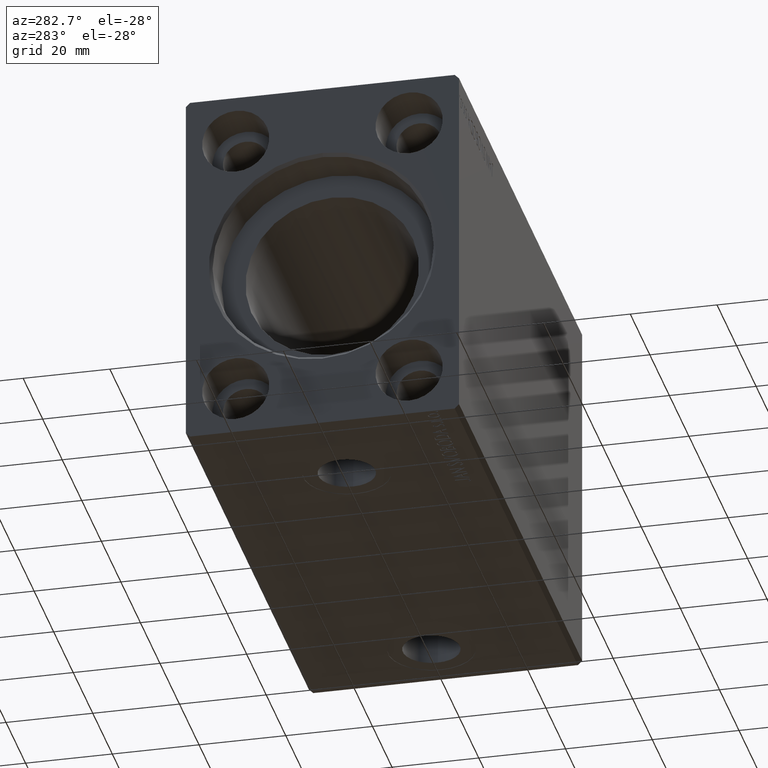
[diagram: clean part render]
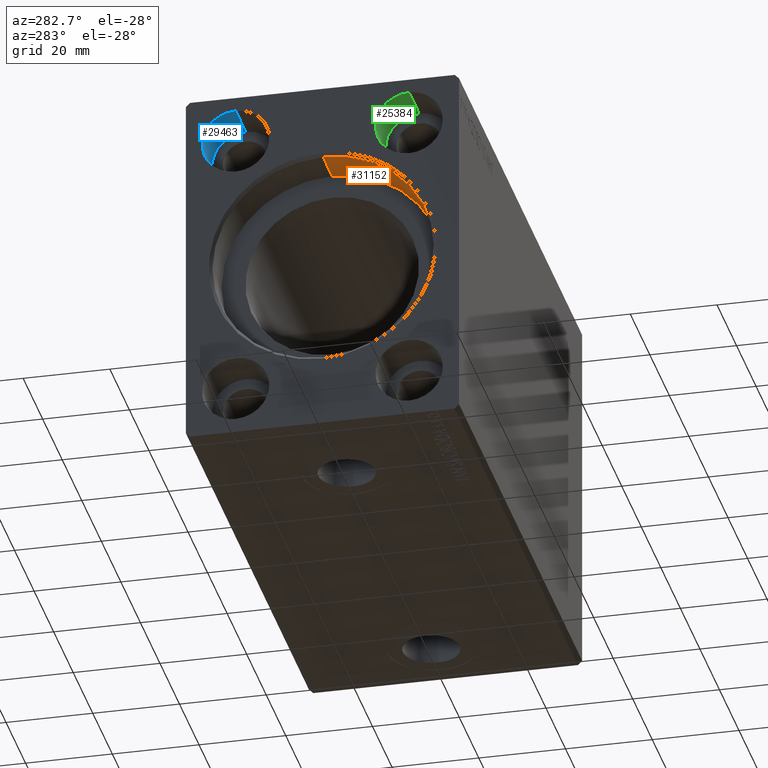
[diagram: same view with three faces highlighted in distinct colors, each labeled with its STEP entity id]
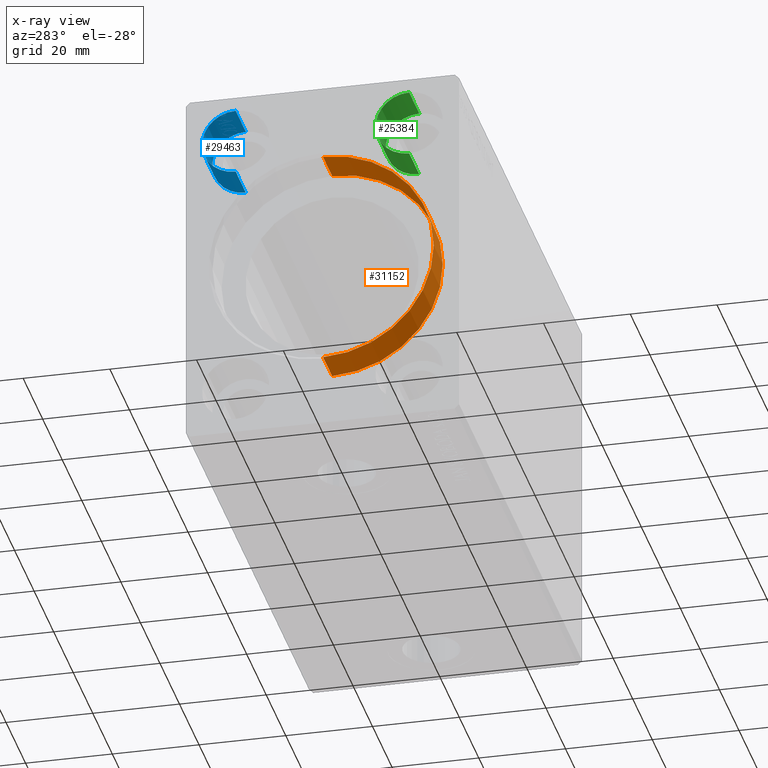
[diagram: x-ray of the same camera — body ghosted, the three highlighted faces saturated]
A machine part, auxiliary view with three faces highlighted in distinct colors.
The next image is the same camera in x-ray (body ghosted, the three faces saturated) — at least one of them is partly hidden behind the body in this view.
Their STEP definitions:

[orange] entity #31152 — the highlighted cylindrical surface (partial cylindrical patch) has radius 25.5 mm, axis along (-1, -0, -0).
#397 = EDGE_LOOP ( 'NONE', ( #21439, #27647, #38355, #24748 ) ) ;
#661 = VERTEX_POINT ( 'NONE', #23253 ) ;
#1562 = CARTESIAN_POINT ( 'NONE',  ( 10.00000000000000000, 0.000000000000000000, 0.000000000000000000 ) ) ;
#1859 = DIRECTION ( 'NONE',  ( -1.000000000000000000, -0.000000000000000000, -0.000000000000000000 ) ) ;
#2559 = CYLINDRICAL_SURFACE ( 'NONE', #8181, 25.50000000000000000 ) ;
#4489 = CIRCLE ( 'NONE', #20944, 25.50000000000000000 ) ;
#4895 = LINE ( 'NONE', #41168, #18906 ) ;
#5386 = VERTEX_POINT ( 'NONE', #39293 ) ;
#7262 = DIRECTION ( 'NONE',  ( 0.000000000000000000, 0.000000000000000000, -1.000000000000000000 ) ) ;
#8181 = AXIS2_PLACEMENT_3D ( 'NONE', #18642, #18010, #15635 ) ;
#8804 = EDGE_CURVE ( 'NONE', #37252, #19136, #34508, .T. ) ;
#13685 = CARTESIAN_POINT ( 'NONE',  ( 0.6999999999999922951, 0.000000000000000000, 0.000000000000000000 ) ) ;
#14353 = VECTOR ( 'NONE', #1859, 1000.000000000000000 ) ;
#14540 = EDGE_CURVE ( 'NONE', #661, #5386, #4489, .T. ) ;
#15635 = DIRECTION ( 'NONE',  ( 0.000000000000000000, 0.000000000000000000, 1.000000000000000000 ) ) ;
#18010 = DIRECTION ( 'NONE',  ( -1.000000000000000000, -0.000000000000000000, -0.000000000000000000 ) ) ;
#18642 = CARTESIAN_POINT ( 'NONE',  ( 10.00000000000000000, 0.000000000000000000, 0.000000000000000000 ) ) ;
#18906 = VECTOR ( 'NONE', #24632, 1000.000000000000000 ) ;
#19136 = VERTEX_POINT ( 'NONE', #33582 ) ;
#20944 = AXIS2_PLACEMENT_3D ( 'NONE', #13685, #31019, #7262 ) ;
#21439 = ORIENTED_EDGE ( 'NONE', *, *, #8804, .F. ) ;
#21554 = EDGE_CURVE ( 'NONE', #19136, #5386, #4895, .T. ) ;
#23253 = CARTESIAN_POINT ( 'NONE',  ( 0.6999999999999922951, 3.122849337825750222E-15, -25.50000000000000000 ) ) ;
#24632 = DIRECTION ( 'NONE',  ( -1.000000000000000000, -0.000000000000000000, -0.000000000000000000 ) ) ;
#24748 = ORIENTED_EDGE ( 'NONE', *, *, #21554, .F. ) ;
#26974 = AXIS2_PLACEMENT_3D ( 'NONE', #1562, #28170, #37210 ) ;
#27647 = ORIENTED_EDGE ( 'NONE', *, *, #32175, .T. ) ;
#28170 = DIRECTION ( 'NONE',  ( -1.000000000000000000, 0.000000000000000000, 0.000000000000000000 ) ) ;
#28478 = CARTESIAN_POINT ( 'NONE',  ( 10.00000000000000000, 3.122849337825750222E-15, -25.50000000000000000 ) ) ;
#31019 = DIRECTION ( 'NONE',  ( -1.000000000000000000, 0.000000000000000000, 0.000000000000000000 ) ) ;
#31152 = ADVANCED_FACE ( 'NONE', ( #40997 ), #2559, .F. ) ;
#32175 = EDGE_CURVE ( 'NONE', #37252, #661, #34488, .T. ) ;
#33582 = CARTESIAN_POINT ( 'NONE',  ( 10.00000000000000000, 0.000000000000000000, 25.50000000000000000 ) ) ;
#34488 = LINE ( 'NONE', #28478, #14353 ) ;
#34508 = CIRCLE ( 'NONE', #26974, 25.50000000000000000 ) ;
#36050 = CARTESIAN_POINT ( 'NONE',  ( 10.00000000000000000, 3.122849337825750222E-15, -25.50000000000000000 ) ) ;
#37210 = DIRECTION ( 'NONE',  ( 0.000000000000000000, 0.000000000000000000, 1.000000000000000000 ) ) ;
#37252 = VERTEX_POINT ( 'NONE', #36050 ) ;
#38355 = ORIENTED_EDGE ( 'NONE', *, *, #14540, .T. ) ;
#39293 = CARTESIAN_POINT ( 'NONE',  ( 0.6999999999999922951, 0.000000000000000000, 25.50000000000000000 ) ) ;
#40997 = FACE_OUTER_BOUND ( 'NONE', #397, .T. ) ;
#41168 = CARTESIAN_POINT ( 'NONE',  ( 10.00000000000000000, 0.000000000000000000, 25.50000000000000000 ) ) ;

[blue] entity #29463 — the highlighted cylindrical surface (edge-blend (fillet) strip) has radius 7.75 mm, axis along (-1, -0, -0).
#1675 = EDGE_CURVE ( 'NONE', #7584, #4542, #18539, .T. ) ;
#1700 = ORIENTED_EDGE ( 'NONE', *, *, #10689, .T. ) ;
#2367 = AXIS2_PLACEMENT_3D ( 'NONE', #23934, #11048, #3977 ) ;
#3977 = DIRECTION ( 'NONE',  ( 0.000000000000000000, 0.000000000000000000, -1.000000000000000000 ) ) ;
#4110 = CARTESIAN_POINT ( 'NONE',  ( 0.000000000000000000, 20.00000000000000355, 23.75000000000001421 ) ) ;
#4542 = VERTEX_POINT ( 'NONE', #4110 ) ;
#4600 = VECTOR ( 'NONE', #34637, 1000.000000000000000 ) ;
#5146 = AXIS2_PLACEMENT_3D ( 'NONE', #30544, #17863, #7786 ) ;
#5642 = DIRECTION ( 'NONE',  ( -1.000000000000000000, -0.000000000000000000, -0.000000000000000000 ) ) ;
#6556 = CIRCLE ( 'NONE', #5146, 7.750000000000000000 ) ;
#7584 = VERTEX_POINT ( 'NONE', #15536 ) ;
#7786 = DIRECTION ( 'NONE',  ( 0.000000000000000000, 0.000000000000000000, -1.000000000000000000 ) ) ;
#8859 = LINE ( 'NONE', #12505, #38657 ) ;
#8881 = CARTESIAN_POINT ( 'NONE',  ( 10.33000000000000007, 20.00000000000000355, 23.75000000000001421 ) ) ;
#10689 = EDGE_CURVE ( 'NONE', #35870, #40207, #8859, .T. ) ;
#10852 = ORIENTED_EDGE ( 'NONE', *, *, #12383, .T. ) ;
#11048 = DIRECTION ( 'NONE',  ( 1.000000000000000000, -0.000000000000000000, -0.000000000000000000 ) ) ;
#12383 = EDGE_CURVE ( 'NONE', #7584, #35870, #34566, .T. ) ;
#12505 = CARTESIAN_POINT ( 'NONE',  ( 10.33000000000000007, 20.00000000000000355, 39.25000000000001421 ) ) ;
#14056 = CARTESIAN_POINT ( 'NONE',  ( 10.33000000000000007, 20.00000000000000355, 39.25000000000001421 ) ) ;
#14716 = EDGE_CURVE ( 'NONE', #4542, #40207, #6556, .T. ) ;
#15109 = CARTESIAN_POINT ( 'NONE',  ( 0.000000000000000000, 20.00000000000000355, 39.25000000000001421 ) ) ;
#15536 = CARTESIAN_POINT ( 'NONE',  ( 10.33000000000000007, 20.00000000000000355, 23.75000000000001421 ) ) ;
#16909 = ORIENTED_EDGE ( 'NONE', *, *, #14716, .F. ) ;
#17863 = DIRECTION ( 'NONE',  ( 1.000000000000000000, -0.000000000000000000, -0.000000000000000000 ) ) ;
#18103 = CYLINDRICAL_SURFACE ( 'NONE', #40345, 7.750000000000000000 ) ;
#18539 = LINE ( 'NONE', #8881, #4600 ) ;
#23934 = CARTESIAN_POINT ( 'NONE',  ( 10.33000000000000007, 20.00000000000000355, 31.50000000000001421 ) ) ;
#24756 = CARTESIAN_POINT ( 'NONE',  ( 10.33000000000000007, 20.00000000000000355, 31.50000000000001421 ) ) ;
#25404 = DIRECTION ( 'NONE',  ( -1.000000000000000000, -0.000000000000000000, -0.000000000000000000 ) ) ;
#29002 = EDGE_LOOP ( 'NONE', ( #41310, #10852, #1700, #16909 ) ) ;
#29463 = ADVANCED_FACE ( 'NONE', ( #41091 ), #18103, .F. ) ;
#30544 = CARTESIAN_POINT ( 'NONE',  ( 0.000000000000000000, 20.00000000000000355, 31.50000000000001421 ) ) ;
#34566 = CIRCLE ( 'NONE', #2367, 7.750000000000000000 ) ;
#34637 = DIRECTION ( 'NONE',  ( -1.000000000000000000, -0.000000000000000000, -0.000000000000000000 ) ) ;
#35870 = VERTEX_POINT ( 'NONE', #14056 ) ;
#38657 = VECTOR ( 'NONE', #5642, 1000.000000000000000 ) ;
#40207 = VERTEX_POINT ( 'NONE', #15109 ) ;
#40345 = AXIS2_PLACEMENT_3D ( 'NONE', #24756, #25404, #41506 ) ;
#41091 = FACE_OUTER_BOUND ( 'NONE', #29002, .T. ) ;
#41310 = ORIENTED_EDGE ( 'NONE', *, *, #1675, .F. ) ;
#41506 = DIRECTION ( 'NONE',  ( 0.000000000000000000, 0.000000000000000000, 1.000000000000000000 ) ) ;

[green] entity #25384 — the highlighted cylindrical surface (edge-blend (fillet) strip) has radius 7.75 mm, axis along (-1, -0, -0).
#39 = CARTESIAN_POINT ( 'NONE',  ( 10.33000000000000007, -19.99999999999999645, 23.75000000000001421 ) ) ;
#3916 = DIRECTION ( 'NONE',  ( 0.000000000000000000, 0.000000000000000000, 1.000000000000000000 ) ) ;
#4229 = ORIENTED_EDGE ( 'NONE', *, *, #16106, .F. ) ;
#4334 = FACE_OUTER_BOUND ( 'NONE', #8818, .T. ) ;
#4336 = EDGE_CURVE ( 'NONE', #34858, #4818, #9015, .T. ) ;
#4818 = VERTEX_POINT ( 'NONE', #22221 ) ;
#7520 = AXIS2_PLACEMENT_3D ( 'NONE', #21206, #37523, #8109 ) ;
#8109 = DIRECTION ( 'NONE',  ( 0.000000000000000000, 0.000000000000000000, 1.000000000000000000 ) ) ;
#8818 = EDGE_LOOP ( 'NONE', ( #4229, #12686, #40703, #15833 ) ) ;
#9015 = CIRCLE ( 'NONE', #37132, 7.750000000000000000 ) ;
#12148 = CARTESIAN_POINT ( 'NONE',  ( 10.33000000000000007, -19.99999999999999645, 23.75000000000001421 ) ) ;
#12390 = DIRECTION ( 'NONE',  ( -1.000000000000000000, 0.000000000000000000, 0.000000000000000000 ) ) ;
#12686 = ORIENTED_EDGE ( 'NONE', *, *, #32959, .F. ) ;
#14101 = VECTOR ( 'NONE', #26230, 1000.000000000000000 ) ;
#15501 = VECTOR ( 'NONE', #32097, 1000.000000000000000 ) ;
#15605 = DIRECTION ( 'NONE',  ( 0.000000000000000000, 0.000000000000000000, 1.000000000000000000 ) ) ;
#15833 = ORIENTED_EDGE ( 'NONE', *, *, #4336, .T. ) ;
#16106 = EDGE_CURVE ( 'NONE', #39359, #4818, #38686, .T. ) ;
#18992 = CARTESIAN_POINT ( 'NONE',  ( 10.33000000000000007, -19.99999999999999645, 39.25000000000001421 ) ) ;
#19007 = AXIS2_PLACEMENT_3D ( 'NONE', #33324, #40407, #3916 ) ;
#21206 = CARTESIAN_POINT ( 'NONE',  ( 10.33000000000000007, -19.99999999999999645, 31.50000000000001421 ) ) ;
#21929 = EDGE_CURVE ( 'NONE', #36140, #34858, #31667, .T. ) ;
#22221 = CARTESIAN_POINT ( 'NONE',  ( 0.000000000000000000, -19.99999999999999645, 23.75000000000001421 ) ) ;
#25384 = ADVANCED_FACE ( 'NONE', ( #4334 ), #27300, .F. ) ;
#26230 = DIRECTION ( 'NONE',  ( -1.000000000000000000, -0.000000000000000000, -0.000000000000000000 ) ) ;
#27300 = CYLINDRICAL_SURFACE ( 'NONE', #19007, 7.750000000000000000 ) ;
#31667 = LINE ( 'NONE', #18992, #15501 ) ;
#31936 = CARTESIAN_POINT ( 'NONE',  ( 0.000000000000000000, -19.99999999999999645, 31.50000000000001421 ) ) ;
#32097 = DIRECTION ( 'NONE',  ( -1.000000000000000000, -0.000000000000000000, -0.000000000000000000 ) ) ;
#32959 = EDGE_CURVE ( 'NONE', #36140, #39359, #39765, .T. ) ;
#33324 = CARTESIAN_POINT ( 'NONE',  ( 10.33000000000000007, -19.99999999999999645, 31.50000000000001421 ) ) ;
#34858 = VERTEX_POINT ( 'NONE', #36269 ) ;
#36140 = VERTEX_POINT ( 'NONE', #37348 ) ;
#36269 = CARTESIAN_POINT ( 'NONE',  ( 0.000000000000000000, -19.99999999999999645, 39.25000000000001421 ) ) ;
#37132 = AXIS2_PLACEMENT_3D ( 'NONE', #31936, #12390, #15605 ) ;
#37348 = CARTESIAN_POINT ( 'NONE',  ( 10.33000000000000007, -19.99999999999999645, 39.25000000000001421 ) ) ;
#37523 = DIRECTION ( 'NONE',  ( -1.000000000000000000, 0.000000000000000000, 0.000000000000000000 ) ) ;
#38686 = LINE ( 'NONE', #39, #14101 ) ;
#39359 = VERTEX_POINT ( 'NONE', #12148 ) ;
#39765 = CIRCLE ( 'NONE', #7520, 7.750000000000000000 ) ;
#40407 = DIRECTION ( 'NONE',  ( -1.000000000000000000, -0.000000000000000000, -0.000000000000000000 ) ) ;
#40703 = ORIENTED_EDGE ( 'NONE', *, *, #21929, .T. ) ;